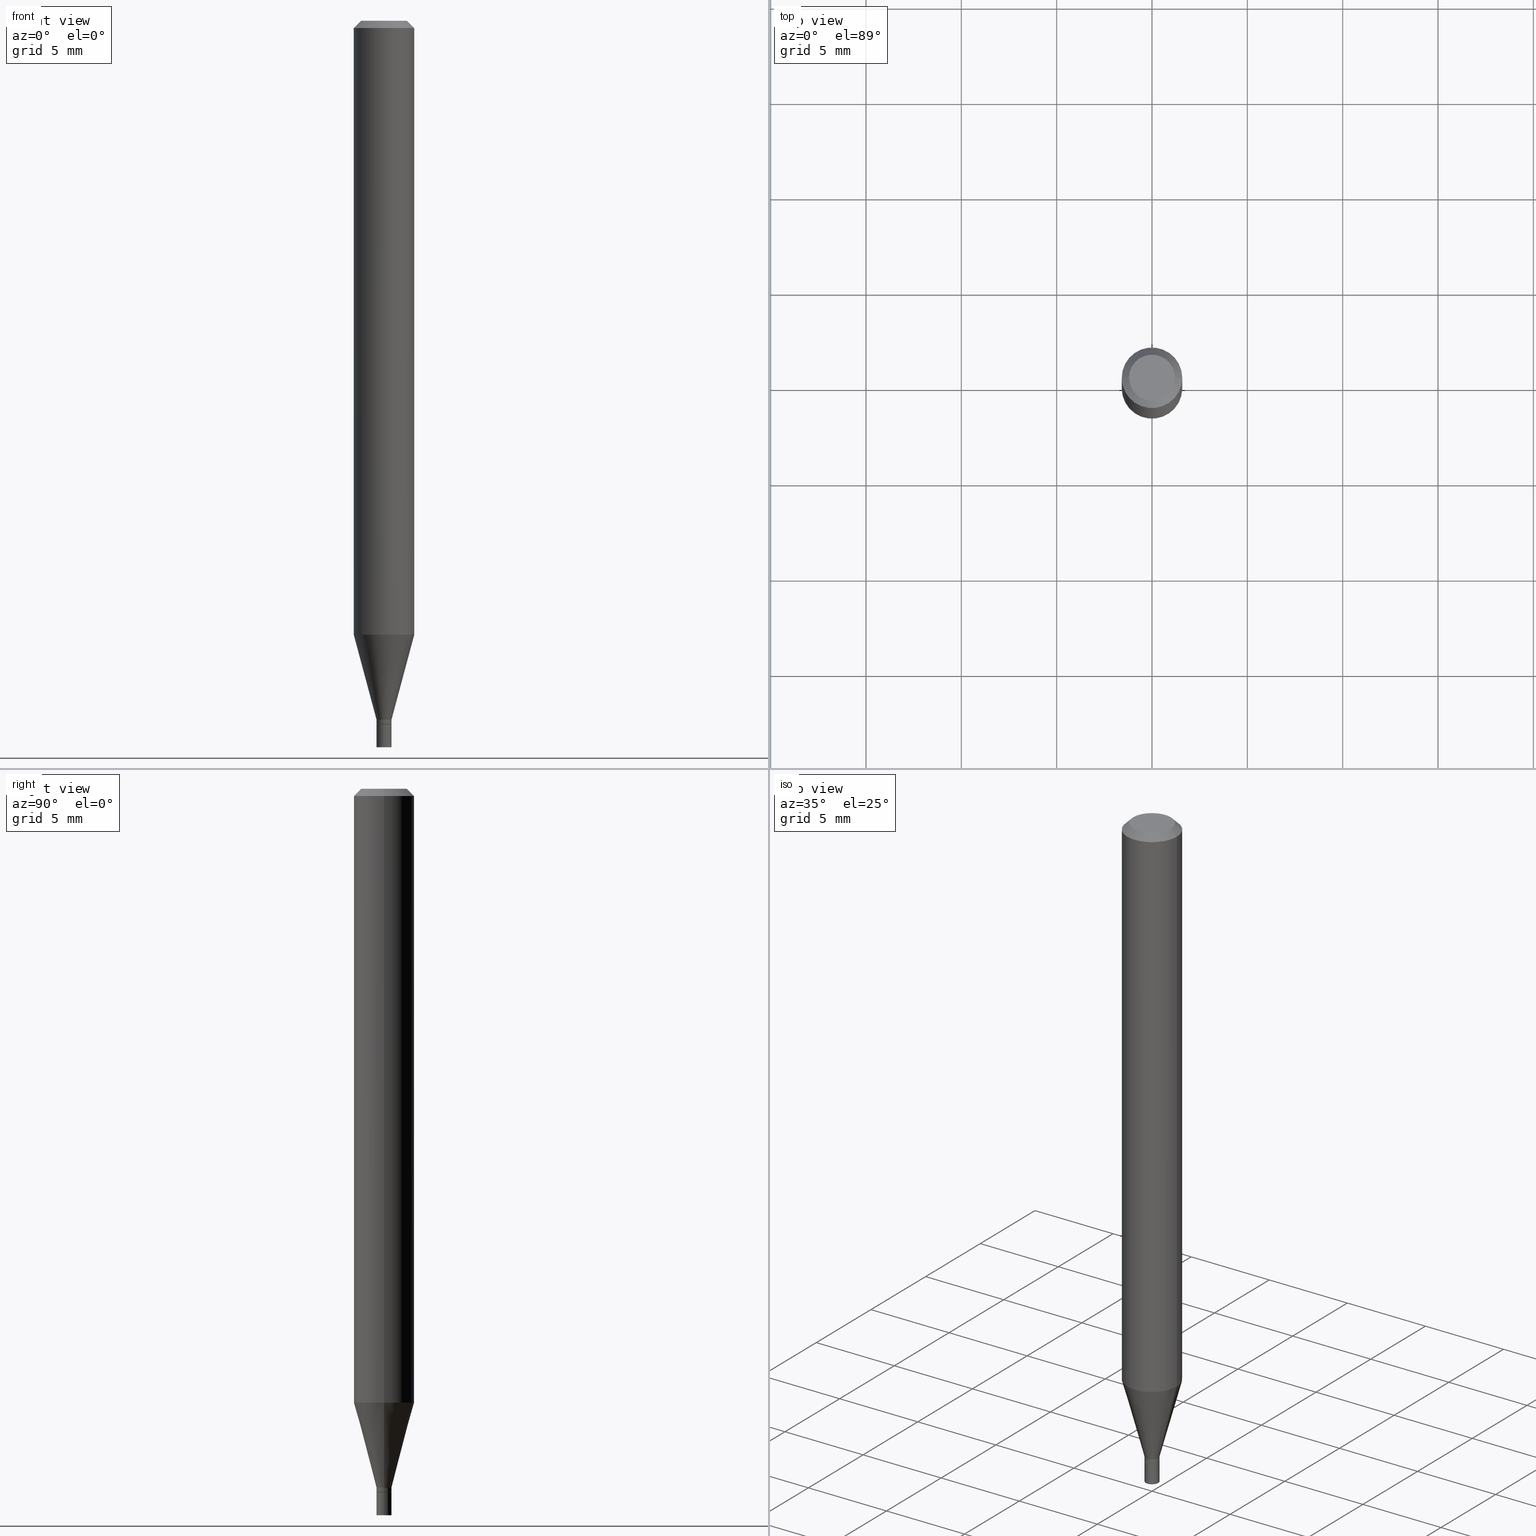
[diagram: canonical four-view strip — front | top / right | iso, engineering-drawing reading convention]
A machine part, canonical four-view strip (front | top / right | iso — engineering-drawing reading convention). The complete STEP part file that produces these views, byte-faithful:
ISO-10303-21;
HEADER;
FILE_DESCRIPTION (( 'STEP AP203' ),
    '1' );
FILE_NAME ('00327.STEP',
    '2024-03-19T20:59:02',
    ( '' ),
    ( '' ),
    'SwSTEP 2.0',
    'SolidWorks 2023',
    '' );
FILE_SCHEMA (( 'CONFIG_CONTROL_DESIGN' ));
ENDSEC;

DATA;
#1 = EDGE_CURVE ( 'NONE', #279, #460, #418, .T. ) ;
#2 = FACE_OUTER_BOUND ( 'NONE', #95, .T. ) ;
#3 = CARTESIAN_POINT ( 'NONE',  ( -0.01499999999999999944, -4.963891747800964207E-15, -1.453000000000000069 ) ) ;
#4 = ADVANCED_FACE ( 'NONE', ( #68 ), #396, .T. ) ;
#5 = AXIS2_PLACEMENT_3D ( 'NONE', #336, #157, #264 ) ;
#6 = DIRECTION ( 'NONE',  ( 1.000000000000000000, -6.982962677686273810E-15, 0.000000000000000000 ) ) ;
#7 = AXIS2_PLACEMENT_3D ( 'NONE', #217, #335, #16 ) ;
#8 = MANIFOLD_SOLID_BREP ( 'Body-Move/Copy2[2]', #388 ) ;
#9 = CARTESIAN_POINT ( 'NONE',  ( 3.553266175387003417E-29, -5.073122385339090530E-15, -1.453000000000000069 ) ) ;
#10 = EDGE_LOOP ( 'NONE', ( #343, #131, #385, #84 ) ) ;
#11 = DIRECTION ( 'NONE',  ( -2.445468806185136597E-29, 3.491481338843145583E-15, 1.000000000000000000 ) ) ;
#12 = DIRECTION ( 'NONE',  ( 1.000000000000000000, -6.982962677686273810E-15, 0.000000000000000000 ) ) ;
#13 = VERTEX_POINT ( 'NONE', #165 ) ;
#14 = CARTESIAN_POINT ( 'NONE',  ( 3.668203209277705088E-31, -5.237222008264718399E-17, -0.01499999999999999944 ) ) ;
#15 = CALENDAR_DATE ( 2024, 19, 3 ) ;
#16 = DIRECTION ( 'NONE',  ( 1.000000000000000000, -6.982962677686238312E-15, 0.000000000000000000 ) ) ;
#17 = ADVANCED_FACE ( 'NONE', ( #113 ), #44, .T. ) ;
#18 = DIRECTION ( 'NONE',  ( 1.000000000000000000, -6.982962677686266711E-15, 0.000000000000000000 ) ) ;
#19 = ORIENTED_EDGE ( 'NONE', *, *, #329, .T. ) ;
#20 = PLANE ( 'NONE',  #200 ) ;
#21 = ORIENTED_EDGE ( 'NONE', *, *, #96, .T. ) ;
#22 = CARTESIAN_POINT ( 'NONE',  ( -0.06250000000000000000, 3.840629472727444916E-16, -0.01499999999999999944 ) ) ;
#23 = FACE_OUTER_BOUND ( 'NONE', #224, .T. ) ;
#24 = EDGE_LOOP ( 'NONE', ( #94, #153, #19, #276 ) ) ;
#25 = CARTESIAN_POINT ( 'NONE',  ( -0.04749999999999999362, 3.578768372314202617E-16, -4.684051019975790718E-16 ) ) ;
#26 = EDGE_LOOP ( 'NONE', ( #393, #345, #454, #132 ) ) ;
#27 = AXIS2_PLACEMENT_3D ( 'NONE', #413, #284, #255 ) ;
#28 = ORIENTED_EDGE ( 'NONE', *, *, #60, .T. ) ;
#29 = VECTOR ( 'NONE', #189, 39.37007874015748854 ) ;
#30 = DIMENSIONAL_EXPONENTS ( 1.000000000000000000, 0.000000000000000000, 0.000000000000000000, 0.000000000000000000, 0.000000000000000000, 0.000000000000000000, 0.000000000000000000 ) ;
#31 = APPLICATION_PROTOCOL_DEFINITION ( 'international standard', 'config_control_design', 1994, #447 ) ;
#32 = APPROVAL_DATE_TIME ( #238, #430 ) ;
#33 = AXIS2_PLACEMENT_3D ( 'NONE', #150, #81, #121 ) ;
#34 = ADVANCED_FACE ( 'NONE', ( #56 ), #298, .T. ) ;
#35 = CIRCLE ( 'NONE', #97, 0.01549999999999999989 ) ;
#36 = APPROVAL_ROLE ( '' ) ;
#37 = CIRCLE ( 'NONE', #306, 0.01549999999999992183 ) ;
#38 = CC_DESIGN_APPROVAL ( #177, ( #289 ) ) ;
#39 = ORIENTED_EDGE ( 'NONE', *, *, #364, .T. ) ;
#40 = CC_DESIGN_PERSON_AND_ORGANIZATION_ASSIGNMENT ( #309, #61, ( #183 ) ) ;
#41 = ORIENTED_EDGE ( 'NONE', *, *, #179, .F. ) ;
#42 = CARTESIAN_POINT ( 'NONE',  ( -0.06250000000000000000, -3.981690231839260141E-15, -1.267593612044263018 ) ) ;
#43 = DIRECTION ( 'NONE',  ( 1.000000000000000000, -6.982962677686265922E-15, 4.876176775795935793E-29 ) ) ;
#44 = CONICAL_SURFACE ( 'NONE', #371, 0.01549999999999992183, 0.2617993877991499629 ) ;
#45 = DIRECTION ( 'NONE',  ( 0.7071067811865642261, -2.468850131082431399E-15, 0.7071067811865309194 ) ) ;
#46 = CONICAL_SURFACE ( 'NONE', #277, 0.06250000000000000000, 0.7853981633974639331 ) ;
#47 = FACE_OUTER_BOUND ( 'NONE', #444, .T. ) ;
#48 = FACE_OUTER_BOUND ( 'NONE', #220, .T. ) ;
#49 = DIRECTION ( 'NONE',  ( -2.438088387897960049E-29, 3.491481338843145188E-15, 1.000000000000000000 ) ) ;
#50 = EDGE_CURVE ( 'NONE', #328, #173, #240, .T. ) ;
#51 = CARTESIAN_POINT ( 'NONE',  ( -0.01549999999999992183, -4.454881839873552684E-15, -1.443000000000000060 ) ) ;
#52 = DIRECTION ( 'NONE',  ( -2.445468806185136597E-29, 3.491481338843145583E-15, 1.000000000000000000 ) ) ;
#53 = ORIENTED_EDGE ( 'NONE', *, *, #145, .F. ) ;
#54 = EDGE_LOOP ( 'NONE', ( #325, #91, #296, #72 ) ) ;
#55 = DIRECTION ( 'NONE',  ( -2.445468806185136877E-29, 3.491481338843145188E-15, 1.000000000000000000 ) ) ;
#56 = FACE_OUTER_BOUND ( 'NONE', #129, .T. ) ;
#57 = VECTOR ( 'NONE', #436, 39.37007874015748143 ) ;
#58 = ORIENTED_EDGE ( 'NONE', *, *, #162, .T. ) ;
#59 = CARTESIAN_POINT ( 'NONE',  ( 3.553266175387003417E-29, -5.073122385339090530E-15, -1.453000000000000069 ) ) ;
#60 = EDGE_CURVE ( 'NONE', #173, #328, #360, .T. ) ;
#61 = PERSON_AND_ORGANIZATION_ROLE ( 'design_owner' ) ;
#62 = ORIENTED_EDGE ( 'NONE', *, *, #226, .F. ) ;
#63 =( NAMED_UNIT ( * ) SI_UNIT ( $, .STERADIAN. ) SOLID_ANGLE_UNIT ( ) );
#64 = LOCAL_TIME ( 16, 59, 2.000000000000000000, #392 ) ;
#65 = EDGE_CURVE ( 'NONE', #305, #397, #37, .T. ) ;
#66 = DIRECTION ( 'NONE',  ( -2.445468806185136597E-29, 3.491481338843145583E-15, 1.000000000000000000 ) ) ;
#67 = PRODUCT_DEFINITION_FORMATION_WITH_SPECIFIED_SOURCE ( 'ANY', '', #183, .NOT_KNOWN. ) ;
#68 = FACE_OUTER_BOUND ( 'NONE', #54, .T. ) ;
#69 = ADVANCED_BREP_SHAPE_REPRESENTATION ( '00327', ( #321, #8, #169 ), #146 ) ;
#70 = DIRECTION ( 'NONE',  ( -2.445468806185136877E-29, 3.491481338843145188E-15, 1.000000000000000000 ) ) ;
#71 = CONICAL_SURFACE ( 'NONE', #340, 0.01499999999999999944, 0.7853981633974718157 ) ;
#72 = ORIENTED_EDGE ( 'NONE', *, *, #455, .T. ) ;
#73 = PRODUCT_DEFINITION_SHAPE ( 'NONE', 'NONE',  #289 ) ;
#74 = CARTESIAN_POINT ( 'NONE',  ( 3.528811487325152432E-29, -5.038207571950659670E-15, -1.443000000000000060 ) ) ;
#75 = EDGE_CURVE ( 'NONE', #428, #203, #218, .T. ) ;
#76 = DIRECTION ( 'NONE',  ( 1.000000000000000000, -6.982962677686273810E-15, 0.000000000000000000 ) ) ;
#77 = ORIENTED_EDGE ( 'NONE', *, *, #364, .F. ) ;
#78 = AXIS2_PLACEMENT_3D ( 'NONE', #92, #453, #223 ) ;
#79 = LOCAL_TIME ( 16, 59, 2.000000000000000000, #86 ) ;
#80 = FACE_OUTER_BOUND ( 'NONE', #402, .T. ) ;
#81 = DIRECTION ( 'NONE',  ( -2.445468806185136597E-29, 3.491481338843145583E-15, 1.000000000000000000 ) ) ;
#82 = DIRECTION ( 'NONE',  ( 1.000000000000000000, -6.982962677686268288E-15, 0.000000000000000000 ) ) ;
#83 = CARTESIAN_POINT ( 'NONE',  ( 0.01499999999999999944, -5.177866825504383900E-15, -1.453000000000000069 ) ) ;
#84 = ORIENTED_EDGE ( 'NONE', *, *, #329, .F. ) ;
#85 = DIRECTION ( 'NONE',  ( -2.445468806185136877E-29, 3.491481338843145188E-15, 1.000000000000000000 ) ) ;
#86 = COORDINATED_UNIVERSAL_TIME_OFFSET ( 5, 0, .BEHIND. ) ;
#87 = DIRECTION ( 'NONE',  ( -2.445468806185136597E-29, 3.491481338843145583E-15, 1.000000000000000000 ) ) ;
#88 = LINE ( 'NONE', #22, #434 ) ;
#89 = CC_DESIGN_PERSON_AND_ORGANIZATION_ASSIGNMENT ( #110, #448, ( #289 ) ) ;
#90 = AXIS2_PLACEMENT_3D ( 'NONE', #212, #231, #408 ) ;
#91 = ORIENTED_EDGE ( 'NONE', *, *, #60, .F. ) ;
#92 = CARTESIAN_POINT ( 'NONE',  ( 1.145470065593040868E-44, -1.635427672643458845E-30, -4.684051019975766066E-16 ) ) ;
#93 = DIRECTION ( 'NONE',  ( -2.445468806185136597E-29, 3.491481338843145583E-15, 1.000000000000000000 ) ) ;
#94 = ORIENTED_EDGE ( 'NONE', *, *, #265, .F. ) ;
#95 = EDGE_LOOP ( 'NONE', ( #452, #377, #282, #41 ) ) ;
#96 = EDGE_CURVE ( 'NONE', #460, #222, #342, .T. ) ;
#97 = AXIS2_PLACEMENT_3D ( 'NONE', #295, #191, #449 ) ;
#98 = CALENDAR_DATE ( 2024, 19, 3 ) ;
#99 = DIRECTION ( 'NONE',  ( -2.445468806185136597E-29, 3.491481338843145583E-15, 1.000000000000000000 ) ) ;
#100 = ORIENTED_EDGE ( 'NONE', *, *, #274, .T. ) ;
#101 = PRODUCT_RELATED_PRODUCT_CATEGORY ( 'detail', '', ( #183 ) ) ;
#102 = LINE ( 'NONE', #244, #175 ) ;
#103 = VECTOR ( 'NONE', #114, 39.37007874015748143 ) ;
#104 = EDGE_CURVE ( 'NONE', #353, #314, #158, .T. ) ;
#105 = FACE_OUTER_BOUND ( 'NONE', #451, .T. ) ;
#106 = ADVANCED_FACE ( 'NONE', ( #48 ), #163, .F. ) ;
#107 = ORIENTED_EDGE ( 'NONE', *, *, #145, .T. ) ;
#108 = CARTESIAN_POINT ( 'NONE',  ( 3.528811487325152432E-29, -5.038207571950659670E-15, -1.443000000000000060 ) ) ;
#109 = CARTESIAN_POINT ( 'NONE',  ( 3.316907271900976096E-16, 0.04749999999999999362, -4.000479145938377490E-16 ) ) ;
#110 = PERSON_AND_ORGANIZATION ( #320, #257 ) ;
#111 = DIRECTION ( 'NONE',  ( 1.000000000000000000, -6.982962677686273810E-15, 0.000000000000000000 ) ) ;
#112 = PERSON_AND_ORGANIZATION ( #320, #257 ) ;
#113 = FACE_OUTER_BOUND ( 'NONE', #26, .T. ) ;
#114 = DIRECTION ( 'NONE',  ( -2.445468806185136877E-29, 3.491481338843145188E-15, 1.000000000000000000 ) ) ;
#115 = ORIENTED_EDGE ( 'NONE', *, *, #1, .T. ) ;
#116 = AXIS2_PLACEMENT_3D ( 'NONE', #262, #232, #250 ) ;
#117 = CYLINDRICAL_SURFACE ( 'NONE', #211, 0.01549999999999992183 ) ;
#118 = AXIS2_PLACEMENT_3D ( 'NONE', #156, #52, #193 ) ;
#119 = APPROVAL_DATE_TIME ( #155, #177 ) ;
#120 = DIRECTION ( 'NONE',  ( -2.445468806185136597E-29, 3.491481338843145583E-15, 1.000000000000000000 ) ) ;
#121 = DIRECTION ( 'NONE',  ( 1.000000000000000000, -6.982962677686238312E-15, 0.000000000000000000 ) ) ;
#122 = ADVANCED_FACE ( 'NONE', ( #23 ), #326, .F. ) ;
#123 = ORIENTED_EDGE ( 'NONE', *, *, #415, .T. ) ;
#124 = DIRECTION ( 'NONE',  ( -2.445468806185136597E-29, 3.491481338843145583E-15, 1.000000000000000000 ) ) ;
#125 = ORIENTED_EDGE ( 'NONE', *, *, #75, .T. ) ;
#126 = DIRECTION ( 'NONE',  ( 1.000000000000000000, -6.982962677686268288E-15, 0.000000000000000000 ) ) ;
#127 = AXIS2_PLACEMENT_3D ( 'NONE', #59, #442, #154 ) ;
#128 = APPROVAL_PERSON_ORGANIZATION ( #112, #430, #352 ) ;
#129 = EDGE_LOOP ( 'NONE', ( #258, #107, #269, #77 ) ) ;
#130 = CC_DESIGN_PERSON_AND_ORGANIZATION_ASSIGNMENT ( #135, #134, ( #67 ) ) ;
#131 = ORIENTED_EDGE ( 'NONE', *, *, #265, .T. ) ;
#132 = ORIENTED_EDGE ( 'NONE', *, *, #1, .F. ) ;
#133 = EDGE_LOOP ( 'NONE', ( #28, #291 ) ) ;
#134 = PERSON_AND_ORGANIZATION_ROLE ( 'creator' ) ;
#135 = PERSON_AND_ORGANIZATION ( #320, #257 ) ;
#136 = CARTESIAN_POINT ( 'NONE',  ( 3.099860637173788860E-29, -4.425779441689322757E-15, -1.267593612044263018 ) ) ;
#137 = CARTESIAN_POINT ( 'NONE',  ( 0.000000000000000000, 0.000000000000000000, 0.000000000000000000 ) ) ;
#138 = EDGE_CURVE ( 'NONE', #460, #279, #463, .T. ) ;
#139 = SECURITY_CLASSIFICATION_LEVEL ( 'unclassified' ) ;
#140 = CARTESIAN_POINT ( 'NONE',  ( 0.000000000000000000, 0.000000000000000000, 0.000000000000000000 ) ) ;
#141 = AXIS2_PLACEMENT_3D ( 'NONE', #9, #286, #126 ) ;
#142 = CARTESIAN_POINT ( 'NONE',  ( 3.668203209277705088E-31, -5.237222008264718399E-17, -0.01499999999999999944 ) ) ;
#143 = CYLINDRICAL_SURFACE ( 'NONE', #426, 0.01549999999999992183 ) ;
#144 = ORIENTED_EDGE ( 'NONE', *, *, #466, .F. ) ;
#145 = EDGE_CURVE ( 'NONE', #203, #428, #280, .T. ) ;
#146 =( GEOMETRIC_REPRESENTATION_CONTEXT ( 3 ) GLOBAL_UNCERTAINTY_ASSIGNED_CONTEXT ( ( #461 ) ) GLOBAL_UNIT_ASSIGNED_CONTEXT ( ( #168, #310, #63 ) ) REPRESENTATION_CONTEXT ( 'NONE', 'WORKASPACE' ) );
#147 = ADVANCED_FACE ( 'NONE', ( #187 ), #311, .T. ) ;
#148 = CARTESIAN_POINT ( 'NONE',  ( 0.04749999999999999362, -4.035134999187586019E-16, -4.684051019975741414E-16 ) ) ;
#149 = APPLICATION_CONTEXT ( 'configuration controlled 3d designs of mechanical parts and assemblies' ) ;
#150 = CARTESIAN_POINT ( 'NONE',  ( 3.668203209277704895E-29, -5.237222008264718177E-15, -1.500000000000000222 ) ) ;
#151 = DIRECTION ( 'NONE',  ( -1.000000000000000000, 6.982962677686266711E-15, 0.000000000000000000 ) ) ;
#152 = CYLINDRICAL_SURFACE ( 'NONE', #458, 0.01549999999999999989 ) ;
#153 = ORIENTED_EDGE ( 'NONE', *, *, #104, .T. ) ;
#154 = DIRECTION ( 'NONE',  ( 1.000000000000000000, -6.982962677686268288E-15, 0.000000000000000000 ) ) ;
#155 = DATE_AND_TIME ( #15, #206 ) ;
#156 = CARTESIAN_POINT ( 'NONE',  ( 0.000000000000000000, 0.000000000000000000, 0.000000000000000000 ) ) ;
#157 = DIRECTION ( 'NONE',  ( -2.445468806185136597E-29, 3.491481338843145583E-15, 1.000000000000000000 ) ) ;
#158 = CIRCLE ( 'NONE', #127, 0.01499999999999999944 ) ;
#159 = LINE ( 'NONE', #263, #241 ) ;
#160 = CIRCLE ( 'NONE', #188, 0.01549999999999992183 ) ;
#161 = CALENDAR_DATE ( 2024, 19, 3 ) ;
#162 = EDGE_CURVE ( 'NONE', #279, #381, #439, .T. ) ;
#163 = PLANE ( 'NONE',  #27 ) ;
#164 = ORIENTED_EDGE ( 'NONE', *, *, #50, .F. ) ;
#165 = CARTESIAN_POINT ( 'NONE',  ( 0.01549999999999992183, -5.146443493454796047E-15, -1.443000000000000060 ) ) ;
#166 = CARTESIAN_POINT ( 'NONE',  ( 3.576687321579069994E-29, -5.368277968210015545E-15, -1.500000000000000222 ) ) ;
#167 = ADVANCED_FACE ( 'NONE', ( #410 ), #20, .F. ) ;
#168 =( CONVERSION_BASED_UNIT ( 'INCH', #216 ) LENGTH_UNIT ( ) NAMED_UNIT ( #30 ) );
#169 = AXIS2_PLACEMENT_3D ( 'NONE', #273, #424, #344 ) ;
#170 = DIRECTION ( 'NONE',  ( 1.000000000000000000, -6.982962677686268288E-15, 0.000000000000000000 ) ) ;
#171 = MECHANICAL_CONTEXT ( 'NONE', #447, 'mechanical' ) ;
#172 = APPROVAL_STATUS ( 'not_yet_approved' ) ;
#173 = VERTEX_POINT ( 'NONE', #25 ) ;
#174 = COORDINATED_UNIVERSAL_TIME_OFFSET ( 5, 0, .BEHIND. ) ;
#175 = VECTOR ( 'NONE', #70, 39.37007874015748143 ) ;
#176 = PERSON_AND_ORGANIZATION_ROLE ( 'classification_officer' ) ;
#177 = APPROVAL ( #294, 'UNSPECIFIED' ) ;
#178 = COORDINATED_UNIVERSAL_TIME_OFFSET ( 5, 0, .BEHIND. ) ;
#179 = EDGE_CURVE ( 'NONE', #363, #13, #245, .T. ) ;
#180 = PERSON_AND_ORGANIZATION_ROLE ( 'design_supplier' ) ;
#181 = ADVANCED_FACE ( 'NONE', ( #445 ), #117, .T. ) ;
#182 = APPROVAL_PERSON_ORGANIZATION ( #356, #215, #36 ) ;
#183 = PRODUCT ( '00327', '00327', '', ( #171 ) ) ;
#184 = ADVANCED_FACE ( 'NONE', ( #303 ), #71, .T. ) ;
#185 = ORIENTED_EDGE ( 'NONE', *, *, #242, .F. ) ;
#186 = CARTESIAN_POINT ( 'NONE',  ( 0.01549999999999992183, -5.179612566173805404E-15, -1.452500000000000124 ) ) ;
#187 = FACE_OUTER_BOUND ( 'NONE', #24, .T. ) ;
#188 = AXIS2_PLACEMENT_3D ( 'NONE', #293, #283, #6 ) ;
#189 = DIRECTION ( 'NONE',  ( 0.2588190451025212391, 1.565188264969622362E-15, 0.9659258262890679791 ) ) ;
#190 = COORDINATED_UNIVERSAL_TIME_OFFSET ( 5, 0, .BEHIND. ) ;
#191 = DIRECTION ( 'NONE',  ( -2.445468806185136597E-29, 3.491481338843145583E-15, 1.000000000000000000 ) ) ;
#192 = CARTESIAN_POINT ( 'NONE',  ( 3.553266175387003417E-29, -5.073122385339090530E-15, -1.453000000000000069 ) ) ;
#193 = DIRECTION ( 'NONE',  ( 1.000000000000000000, -6.982962677686266711E-15, 4.876176775795935793E-29 ) ) ;
#194 = ORIENTED_EDGE ( 'NONE', *, *, #65, .T. ) ;
#195 = DIRECTION ( 'NONE',  ( -2.445468806185136597E-29, 3.491481338843145583E-15, 1.000000000000000000 ) ) ;
#196 = DIRECTION ( 'NONE',  ( 1.000000000000000000, -6.982962677686265922E-15, 4.876176775795935793E-29 ) ) ;
#197 = EDGE_CURVE ( 'NONE', #397, #363, #235, .T. ) ;
#198 = VERTEX_POINT ( 'NONE', #417 ) ;
#199 = DIRECTION ( 'NONE',  ( 1.000000000000000000, -6.982962677686267499E-15, 4.852736867747366768E-29 ) ) ;
#200 = AXIS2_PLACEMENT_3D ( 'NONE', #166, #49, #196 ) ;
#201 = CARTESIAN_POINT ( 'NONE',  ( 0.06250000000000000000, -4.888073874380388472E-16, -0.01499999999999999944 ) ) ;
#202 = EDGE_CURVE ( 'NONE', #305, #13, #159, .T. ) ;
#203 = VERTEX_POINT ( 'NONE', #230 ) ;
#204 = CIRCLE ( 'NONE', #7, 0.01549999999999999989 ) ;
#205 = AXIS2_PLACEMENT_3D ( 'NONE', #136, #316, #243 ) ;
#206 = LOCAL_TIME ( 16, 59, 2.000000000000000000, #190 ) ;
#207 = ORIENTED_EDGE ( 'NONE', *, *, #437, .T. ) ;
#208 = CC_DESIGN_PERSON_AND_ORGANIZATION_ASSIGNMENT ( #318, #180, ( #67 ) ) ;
#209 = CALENDAR_DATE ( 2024, 19, 3 ) ;
#210 = CARTESIAN_POINT ( 'NONE',  ( -0.01549999999999992183, -4.928073447907845227E-15, -1.443000000000000060 ) ) ;
#211 = AXIS2_PLACEMENT_3D ( 'NONE', #337, #259, #414 ) ;
#212 = CARTESIAN_POINT ( 'NONE',  ( 3.668203209277705088E-31, -5.237222008264718399E-17, -0.01499999999999999944 ) ) ;
#213 = LOCAL_TIME ( 16, 59, 2.000000000000000000, #178 ) ;
#214 = ORIENTED_EDGE ( 'NONE', *, *, #254, .F. ) ;
#215 = APPROVAL ( #462, 'UNSPECIFIED' ) ;
#216 = LENGTH_MEASURE_WITH_UNIT ( LENGTH_MEASURE( 0.02539999999999999897 ), #382 );
#217 = CARTESIAN_POINT ( 'NONE',  ( 3.553266175387003417E-29, -5.073122385339090530E-15, -1.453000000000000069 ) ) ;
#218 = CIRCLE ( 'NONE', #33, 0.01549999999999999989 ) ;
#219 = VECTOR ( 'NONE', #45, 39.37007874015748143 ) ;
#220 = EDGE_LOOP ( 'NONE', ( #123, #39 ) ) ;
#221 = CYLINDRICAL_SURFACE ( 'NONE', #118, 0.06250000000000000000 ) ;
#222 = VERTEX_POINT ( 'NONE', #201 ) ;
#223 = DIRECTION ( 'NONE',  ( 1.000000000000000000, -6.982962677686267499E-15, 4.852736867747366768E-29 ) ) ;
#224 = EDGE_LOOP ( 'NONE', ( #185, #389 ) ) ;
#225 = CARTESIAN_POINT ( 'NONE',  ( -0.01549999999999992183, 1.101341240428149734E-16, -7.624349389895065398E-31 ) ) ;
#226 = EDGE_CURVE ( 'NONE', #173, #381, #88, .T. ) ;
#227 = LINE ( 'NONE', #333, #29 ) ;
#228 = CARTESIAN_POINT ( 'NONE',  ( 3.668203209277705088E-31, -5.237222008264718399E-17, -0.01499999999999999944 ) ) ;
#229 = DIRECTION ( 'NONE',  ( 1.000000000000000000, -6.982962677686262766E-15, 0.000000000000000000 ) ) ;
#230 = CARTESIAN_POINT ( 'NONE',  ( -0.01549999999999999989, -5.045038072759088332E-15, -1.500000000000000222 ) ) ;
#231 = DIRECTION ( 'NONE',  ( -2.445468806185136597E-29, 3.491481338843145583E-15, 1.000000000000000000 ) ) ;
#232 = DIRECTION ( 'NONE',  ( -2.445468806185136597E-29, 3.491481338843145583E-15, 1.000000000000000000 ) ) ;
#233 = AXIS2_PLACEMENT_3D ( 'NONE', #108, #251, #380 ) ;
#234 = AXIS2_PLACEMENT_3D ( 'NONE', #137, #66, #351 ) ;
#235 = LINE ( 'NONE', #225, #406 ) ;
#236 = EDGE_LOOP ( 'NONE', ( #164, #100, #300, #62 ) ) ;
#237 = AXIS2_PLACEMENT_3D ( 'NONE', #376, #120, #403 ) ;
#238 = DATE_AND_TIME ( #464, #64 ) ;
#239 = ORIENTED_EDGE ( 'NONE', *, *, #394, .T. ) ;
#240 = CIRCLE ( 'NONE', #78, 0.04749999999999999362 ) ;
#241 = VECTOR ( 'NONE', #85, 39.37007874015748143 ) ;
#242 = EDGE_CURVE ( 'NONE', #314, #353, #407, .T. ) ;
#243 = DIRECTION ( 'NONE',  ( 1.000000000000000000, -6.982962677686262766E-15, 0.000000000000000000 ) ) ;
#244 = CARTESIAN_POINT ( 'NONE',  ( -0.01549999999999999989, 1.101341240428155280E-16, -7.624349389895103058E-31 ) ) ;
#245 = CIRCLE ( 'NONE', #233, 0.01549999999999992183 ) ;
#246 = CIRCLE ( 'NONE', #90, 0.06250000000000000000 ) ;
#247 = ADVANCED_FACE ( 'NONE', ( #272 ), #308, .T. ) ;
#248 = CARTESIAN_POINT ( 'NONE',  ( 0.01499999999999999944, -5.177866825504383900E-15, -1.453000000000000069 ) ) ;
#249 = CARTESIAN_POINT ( 'NONE',  ( -0.06250000000000000000, -1.794986621035922499E-15, -0.01499999999999999944 ) ) ;
#250 = DIRECTION ( 'NONE',  ( 1.000000000000000000, -6.982962677686266711E-15, 4.876176775795935232E-29 ) ) ;
#251 = DIRECTION ( 'NONE',  ( -2.445468806185136597E-29, 3.491481338843145583E-15, 1.000000000000000000 ) ) ;
#252 = DIRECTION ( 'NONE',  ( 2.438088387897960049E-29, -3.491481338843145188E-15, -1.000000000000000000 ) ) ;
#253 = CARTESIAN_POINT ( 'NONE',  ( -0.01549999999999992183, -4.961242520626854583E-15, -1.452500000000000124 ) ) ;
#254 = EDGE_CURVE ( 'NONE', #428, #270, #405, .T. ) ;
#255 = DIRECTION ( 'NONE',  ( -1.000000000000000000, 6.982962677686265922E-15, -4.876176775795935793E-29 ) ) ;
#256 = LINE ( 'NONE', #327, #57 ) ;
#257 = ORGANIZATION ( 'UNSPECIFIED', 'UNSPECIFIED', '' ) ;
#258 = ORIENTED_EDGE ( 'NONE', *, *, #437, .F. ) ;
#259 = DIRECTION ( 'NONE',  ( -2.445468806185136597E-29, 3.491481338843145583E-15, 1.000000000000000000 ) ) ;
#260 = CARTESIAN_POINT ( 'NONE',  ( 0.01549999999999999989, -5.181358306843226907E-15, -1.453000000000000069 ) ) ;
#261 = DATE_AND_TIME ( #161, #79 ) ;
#262 = CARTESIAN_POINT ( 'NONE',  ( 0.000000000000000000, 0.000000000000000000, 0.000000000000000000 ) ) ;
#263 = CARTESIAN_POINT ( 'NONE',  ( 0.01549999999999992183, -1.082359215041365986E-16, 7.558074002483662259E-31 ) ) ;
#264 = DIRECTION ( 'NONE',  ( 1.000000000000000000, -6.982962677686238312E-15, 0.000000000000000000 ) ) ;
#265 = EDGE_CURVE ( 'NONE', #353, #397, #256, .T. ) ;
#266 = ORIENTED_EDGE ( 'NONE', *, *, #197, .T. ) ;
#267 = CLOSED_SHELL ( 'NONE', ( #386, #167, #34, #106 ) ) ;
#268 = ORIENTED_EDGE ( 'NONE', *, *, #162, .F. ) ;
#269 = ORIENTED_EDGE ( 'NONE', *, *, #254, .T. ) ;
#270 = VERTEX_POINT ( 'NONE', #260 ) ;
#271 = CC_DESIGN_DATE_AND_TIME_ASSIGNMENT ( #261, #412, ( #289 ) ) ;
#272 = FACE_OUTER_BOUND ( 'NONE', #350, .T. ) ;
#273 = CARTESIAN_POINT ( 'NONE',  ( 0.000000000000000000, 0.000000000000000000, 0.000000000000000000 ) ) ;
#274 = EDGE_CURVE ( 'NONE', #328, #222, #366, .T. ) ;
#275 = SHAPE_DEFINITION_REPRESENTATION ( #73, #69 ) ;
#276 = ORIENTED_EDGE ( 'NONE', *, *, #304, .F. ) ;
#277 = AXIS2_PLACEMENT_3D ( 'NONE', #14, #378, #151 ) ;
#278 = DATE_AND_TIME ( #98, #450 ) ;
#279 = VERTEX_POINT ( 'NONE', #42 ) ;
#280 = CIRCLE ( 'NONE', #5, 0.01549999999999999989 ) ;
#281 = AXIS2_PLACEMENT_3D ( 'NONE', #383, #409, #199 ) ;
#282 = ORIENTED_EDGE ( 'NONE', *, *, #202, .T. ) ;
#283 = DIRECTION ( 'NONE',  ( -2.445468806185136597E-29, 3.491481338843145583E-15, 1.000000000000000000 ) ) ;
#284 = DIRECTION ( 'NONE',  ( 2.438088387897960049E-29, -3.491481338843145188E-15, -1.000000000000000000 ) ) ;
#285 = ORIENTED_EDGE ( 'NONE', *, *, #202, .F. ) ;
#286 = DIRECTION ( 'NONE',  ( -2.445468806185136597E-29, 3.491481338843145583E-15, 1.000000000000000000 ) ) ;
#287 = FACE_OUTER_BOUND ( 'NONE', #133, .T. ) ;
#288 = DIRECTION ( 'NONE',  ( 1.000000000000000000, -6.982962677686266711E-15, 4.876176775795935232E-29 ) ) ;
#289 = PRODUCT_DEFINITION ( 'UNKNOWN', '', #67, #322 ) ;
#290 = DIRECTION ( 'NONE',  ( 2.445468806185136597E-29, -3.491481338843145583E-15, -1.000000000000000000 ) ) ;
#291 = ORIENTED_EDGE ( 'NONE', *, *, #50, .T. ) ;
#292 = CARTESIAN_POINT ( 'NONE',  ( -0.06250000000000000000, 4.440892098500626162E-16, -3.074334431409316114E-30 ) ) ;
#293 = CARTESIAN_POINT ( 'NONE',  ( 3.552043440983911736E-29, -5.071376644669669816E-15, -1.452500000000000124 ) ) ;
#294 = APPROVAL_STATUS ( 'not_yet_approved' ) ;
#295 = CARTESIAN_POINT ( 'NONE',  ( 3.553266175387003417E-29, -5.073122385339090530E-15, -1.453000000000000069 ) ) ;
#296 = ORIENTED_EDGE ( 'NONE', *, *, #226, .T. ) ;
#297 = VECTOR ( 'NONE', #404, 39.37007874015748143 ) ;
#298 = CYLINDRICAL_SURFACE ( 'NONE', #116, 0.01549999999999999989 ) ;
#299 = CC_DESIGN_APPROVAL ( #215, ( #391 ) ) ;
#300 = ORIENTED_EDGE ( 'NONE', *, *, #466, .T. ) ;
#301 = DIRECTION ( 'NONE',  ( -2.445468806185136597E-29, 3.491481338843145583E-15, 1.000000000000000000 ) ) ;
#302 = CARTESIAN_POINT ( 'NONE',  ( 3.552043440983911736E-29, -5.071376644669669816E-15, -1.452500000000000124 ) ) ;
#303 = FACE_OUTER_BOUND ( 'NONE', #10, .T. ) ;
#304 = EDGE_CURVE ( 'NONE', #397, #305, #160, .T. ) ;
#305 = VERTEX_POINT ( 'NONE', #186 ) ;
#306 = AXIS2_PLACEMENT_3D ( 'NONE', #302, #124, #12 ) ;
#307 = AXIS2_PLACEMENT_3D ( 'NONE', #74, #441, #111 ) ;
#308 = CYLINDRICAL_SURFACE ( 'NONE', #234, 0.06250000000000000000 ) ;
#309 = PERSON_AND_ORGANIZATION ( #320, #257 ) ;
#310 =( NAMED_UNIT ( * ) PLANE_ANGLE_UNIT ( ) SI_UNIT ( $, .RADIAN. ) );
#311 = CONICAL_SURFACE ( 'NONE', #141, 0.01499999999999999944, 0.7853981633974718157 ) ;
#312 = AXIS2_PLACEMENT_3D ( 'NONE', #354, #99, #170 ) ;
#313 = DATE_TIME_ROLE ( 'classification_date' ) ;
#314 = VERTEX_POINT ( 'NONE', #83 ) ;
#315 = APPROVAL_DATE_TIME ( #278, #215 ) ;
#316 = DIRECTION ( 'NONE',  ( -2.445468806185136597E-29, 3.491481338843145583E-15, 1.000000000000000000 ) ) ;
#317 = CARTESIAN_POINT ( 'NONE',  ( 0.01549999999999999989, -5.345457929768855342E-15, -1.500000000000000222 ) ) ;
#318 = PERSON_AND_ORGANIZATION ( #320, #257 ) ;
#319 = CC_DESIGN_APPROVAL ( #430, ( #67 ) ) ;
#320 = PERSON ( 'UNSPECIFIED', 'UNSPECIFIED', 'UNSPECIFIED', ('UNSPECIFIED'), ('UNSPECIFIED'), ('UNSPECIFIED') ) ;
#321 = MANIFOLD_SOLID_BREP ( 'Body-Move/Copy2[1]', #267 ) ;
#322 = DESIGN_CONTEXT ( 'detailed design', #149, 'design' ) ;
#323 = ORIENTED_EDGE ( 'NONE', *, *, #138, .T. ) ;
#324 = CONICAL_SURFACE ( 'NONE', #237, 0.01549999999999992183, 0.2617993877991499629 ) ;
#325 = ORIENTED_EDGE ( 'NONE', *, *, #274, .F. ) ;
#326 = PLANE ( 'NONE',  #433 ) ;
#327 = CARTESIAN_POINT ( 'NONE',  ( -0.01499999999999999944, -4.966540974975075408E-15, -1.453000000000000069 ) ) ;
#328 = VERTEX_POINT ( 'NONE', #148 ) ;
#329 = EDGE_CURVE ( 'NONE', #314, #305, #369, .T. ) ;
#330 = FACE_OUTER_BOUND ( 'NONE', #236, .T. ) ;
#331 = CARTESIAN_POINT ( 'NONE',  ( 0.000000000000000000, 0.000000000000000000, 0.000000000000000000 ) ) ;
#332 = CARTESIAN_POINT ( 'NONE',  ( 3.099860637173788860E-29, -4.425779441689322757E-15, -1.267593612044263018 ) ) ;
#333 = CARTESIAN_POINT ( 'NONE',  ( 0.01549999999999992183, -5.146443493454796047E-15, -1.443000000000000060 ) ) ;
#334 = APPROVAL_ROLE ( '' ) ;
#335 = DIRECTION ( 'NONE',  ( -2.445468806185136597E-29, 3.491481338843145583E-15, 1.000000000000000000 ) ) ;
#336 = CARTESIAN_POINT ( 'NONE',  ( 3.668203209277704895E-29, -5.237222008264718177E-15, -1.500000000000000222 ) ) ;
#337 = CARTESIAN_POINT ( 'NONE',  ( 0.000000000000000000, 0.000000000000000000, 0.000000000000000000 ) ) ;
#338 = EDGE_CURVE ( 'NONE', #13, #460, #227, .T. ) ;
#339 = CARTESIAN_POINT ( 'NONE',  ( 0.06250000000000000000, -4.862214609044713638E-15, -1.267593612044263018 ) ) ;
#340 = AXIS2_PLACEMENT_3D ( 'NONE', #420, #93, #82 ) ;
#341 = ADVANCED_FACE ( 'NONE', ( #330 ), #46, .T. ) ;
#342 = LINE ( 'NONE', #373, #297 ) ;
#343 = ORIENTED_EDGE ( 'NONE', *, *, #242, .T. ) ;
#344 = DIRECTION ( 'NONE',  ( 1.000000000000000000, 0.000000000000000000, 0.000000000000000000 ) ) ;
#345 = ORIENTED_EDGE ( 'NONE', *, *, #179, .T. ) ;
#346 = VECTOR ( 'NONE', #374, 39.37007874015748143 ) ;
#347 = AXIS2_PLACEMENT_3D ( 'NONE', #109, #252, #375 ) ;
#348 = DIRECTION ( 'NONE',  ( -0.7071067811865585639, 2.468850131082372629E-15, -0.7071067811865364705 ) ) ;
#349 = CC_DESIGN_DATE_AND_TIME_ASSIGNMENT ( #358, #313, ( #391 ) ) ;
#350 = EDGE_LOOP ( 'NONE', ( #323, #58, #144, #422 ) ) ;
#351 = DIRECTION ( 'NONE',  ( 1.000000000000000000, -6.982962677686266711E-15, 4.876176775795935793E-29 ) ) ;
#352 = APPROVAL_ROLE ( '' ) ;
#353 = VERTEX_POINT ( 'NONE', #3 ) ;
#354 = CARTESIAN_POINT ( 'NONE',  ( 3.553266175387003417E-29, -5.073122385339090530E-15, -1.453000000000000069 ) ) ;
#355 = CIRCLE ( 'NONE', #400, 0.06250000000000000000 ) ;
#356 = PERSON_AND_ORGANIZATION ( #320, #257 ) ;
#357 = DIRECTION ( 'NONE',  ( 1.000000000000000000, -6.982962677686267499E-15, 4.876176775795935793E-29 ) ) ;
#358 = DATE_AND_TIME ( #209, #213 ) ;
#359 = DIRECTION ( 'NONE',  ( -0.2588190451025212391, 5.211531920934549464E-15, 0.9659258262890679791 ) ) ;
#360 = CIRCLE ( 'NONE', #281, 0.04749999999999999362 ) ;
#361 = ADVANCED_FACE ( 'NONE', ( #287 ), #440, .F. ) ;
#362 = CC_DESIGN_SECURITY_CLASSIFICATION ( #391, ( #67 ) ) ;
#363 = VERTEX_POINT ( 'NONE', #51 ) ;
#364 = EDGE_CURVE ( 'NONE', #198, #270, #35, .T. ) ;
#365 = ORIENTED_EDGE ( 'NONE', *, *, #338, .F. ) ;
#366 = LINE ( 'NONE', #446, #429 ) ;
#367 = CC_DESIGN_PERSON_AND_ORGANIZATION_ASSIGNMENT ( #395, #176, ( #391 ) ) ;
#368 = DIRECTION ( 'NONE',  ( -2.438088387897960049E-29, 3.491481338843145188E-15, 1.000000000000000000 ) ) ;
#369 = LINE ( 'NONE', #248, #219 ) ;
#370 = PERSON_AND_ORGANIZATION ( #320, #257 ) ;
#371 = AXIS2_PLACEMENT_3D ( 'NONE', #416, #87, #76 ) ;
#372 = VECTOR ( 'NONE', #359, 39.37007874015748854 ) ;
#373 = CARTESIAN_POINT ( 'NONE',  ( 0.06250000000000000000, -4.364351673553916694E-16, 3.047610484872459871E-30 ) ) ;
#374 = DIRECTION ( 'NONE',  ( -2.445468806185136877E-29, 3.491481338843145188E-15, 1.000000000000000000 ) ) ;
#375 = DIRECTION ( 'NONE',  ( -1.000000000000000000, 6.982962677686265922E-15, -4.876176775795935793E-29 ) ) ;
#376 = CARTESIAN_POINT ( 'NONE',  ( 3.528811487325152432E-29, -5.038207571950659670E-15, -1.443000000000000060 ) ) ;
#377 = ORIENTED_EDGE ( 'NONE', *, *, #304, .T. ) ;
#378 = DIRECTION ( 'NONE',  ( 2.445468806185136597E-29, -3.491481338843145583E-15, -1.000000000000000000 ) ) ;
#379 = DIRECTION ( 'NONE',  ( -1.000000000000000000, 6.982962677686266711E-15, 0.000000000000000000 ) ) ;
#380 = DIRECTION ( 'NONE',  ( 1.000000000000000000, -6.982962677686273810E-15, 0.000000000000000000 ) ) ;
#381 = VERTEX_POINT ( 'NONE', #249 ) ;
#382 =( LENGTH_UNIT ( ) NAMED_UNIT ( * ) SI_UNIT ( $, .METRE. ) );
#383 = CARTESIAN_POINT ( 'NONE',  ( 1.145470065593040868E-44, -1.635427672643458845E-30, -4.684051019975766066E-16 ) ) ;
#384 = CIRCLE ( 'NONE', #307, 0.01549999999999992183 ) ;
#385 = ORIENTED_EDGE ( 'NONE', *, *, #65, .F. ) ;
#386 = ADVANCED_FACE ( 'NONE', ( #47 ), #152, .T. ) ;
#387 = ADVANCED_FACE ( 'NONE', ( #105 ), #324, .T. ) ;
#388 = CLOSED_SHELL ( 'NONE', ( #181, #184, #341, #247, #387, #17, #399, #4, #361, #122, #147, #427 ) ) ;
#389 = ORIENTED_EDGE ( 'NONE', *, *, #104, .F. ) ;
#390 = AXIS2_PLACEMENT_3D ( 'NONE', #332, #301, #229 ) ;
#391 = SECURITY_CLASSIFICATION ( '', '', #139 ) ;
#392 = COORDINATED_UNIVERSAL_TIME_OFFSET ( 5, 0, .BEHIND. ) ;
#393 = ORIENTED_EDGE ( 'NONE', *, *, #421, .F. ) ;
#394 = EDGE_CURVE ( 'NONE', #13, #363, #384, .T. ) ;
#395 = PERSON_AND_ORGANIZATION ( #320, #257 ) ;
#396 = CONICAL_SURFACE ( 'NONE', #456, 0.06250000000000000000, 0.7853981633974639331 ) ;
#397 = VERTEX_POINT ( 'NONE', #253 ) ;
#398 = LINE ( 'NONE', #210, #372 ) ;
#399 = ADVANCED_FACE ( 'NONE', ( #80 ), #221, .T. ) ;
#400 = AXIS2_PLACEMENT_3D ( 'NONE', #228, #195, #18 ) ;
#401 = EDGE_LOOP ( 'NONE', ( #435, #53 ) ) ;
#402 = EDGE_LOOP ( 'NONE', ( #268, #115, #21, #438 ) ) ;
#403 = DIRECTION ( 'NONE',  ( 1.000000000000000000, -6.982962677686273810E-15, 0.000000000000000000 ) ) ;
#404 = DIRECTION ( 'NONE',  ( -2.445468806185136877E-29, 3.491481338843145188E-15, 1.000000000000000000 ) ) ;
#405 = LINE ( 'NONE', #443, #103 ) ;
#406 = VECTOR ( 'NONE', #55, 39.37007874015748143 ) ;
#407 = CIRCLE ( 'NONE', #312, 0.01499999999999999944 ) ;
#408 = DIRECTION ( 'NONE',  ( 1.000000000000000000, -6.982962677686266711E-15, 0.000000000000000000 ) ) ;
#409 = DIRECTION ( 'NONE',  ( -2.445468806185136597E-29, 3.491481338843145583E-15, 1.000000000000000000 ) ) ;
#410 = FACE_OUTER_BOUND ( 'NONE', #401, .T. ) ;
#411 = APPLICATION_PROTOCOL_DEFINITION ( 'international standard', 'config_control_design', 1994, #149 ) ;
#412 = DATE_TIME_ROLE ( 'creation_date' ) ;
#413 = CARTESIAN_POINT ( 'NONE',  ( 1.082359215041726397E-16, 0.01549999999999492582, -1.453000000000000069 ) ) ;
#414 = DIRECTION ( 'NONE',  ( 1.000000000000000000, -6.982962677686267499E-15, 4.876176775795935793E-29 ) ) ;
#415 = EDGE_CURVE ( 'NONE', #270, #198, #204, .T. ) ;
#416 = CARTESIAN_POINT ( 'NONE',  ( 3.528811487325152432E-29, -5.038207571950659670E-15, -1.443000000000000060 ) ) ;
#417 = CARTESIAN_POINT ( 'NONE',  ( -0.01549999999999999989, -5.045038072759088332E-15, -1.453000000000000069 ) ) ;
#418 = CIRCLE ( 'NONE', #205, 0.06250000000000000000 ) ;
#419 = APPROVAL_PERSON_ORGANIZATION ( #370, #177, #334 ) ;
#420 = CARTESIAN_POINT ( 'NONE',  ( 3.553266175387003417E-29, -5.073122385339090530E-15, -1.453000000000000069 ) ) ;
#421 = EDGE_CURVE ( 'NONE', #363, #279, #398, .T. ) ;
#422 = ORIENTED_EDGE ( 'NONE', *, *, #96, .F. ) ;
#423 = ORIENTED_EDGE ( 'NONE', *, *, #415, .F. ) ;
#424 = DIRECTION ( 'NONE',  ( 0.000000000000000000, 0.000000000000000000, 1.000000000000000000 ) ) ;
#425 = EDGE_LOOP ( 'NONE', ( #194, #266, #457, #285 ) ) ;
#426 = AXIS2_PLACEMENT_3D ( 'NONE', #140, #431, #357 ) ;
#427 = ADVANCED_FACE ( 'NONE', ( #2 ), #143, .T. ) ;
#428 = VERTEX_POINT ( 'NONE', #317 ) ;
#429 = VECTOR ( 'NONE', #432, 39.37007874015748143 ) ;
#430 = APPROVAL ( #172, 'UNSPECIFIED' ) ;
#431 = DIRECTION ( 'NONE',  ( -2.445468806185136597E-29, 3.491481338843145583E-15, 1.000000000000000000 ) ) ;
#432 = DIRECTION ( 'NONE',  ( 0.7071067811865585639, -7.319954787623292333E-15, -0.7071067811865364705 ) ) ;
#433 = AXIS2_PLACEMENT_3D ( 'NONE', #192, #368, #43 ) ;
#434 = VECTOR ( 'NONE', #348, 39.37007874015748143 ) ;
#435 = ORIENTED_EDGE ( 'NONE', *, *, #75, .F. ) ;
#436 = DIRECTION ( 'NONE',  ( -0.7071067811865642261, 7.493145998870414114E-15, 0.7071067811865309194 ) ) ;
#437 = EDGE_CURVE ( 'NONE', #203, #198, #102, .T. ) ;
#438 = ORIENTED_EDGE ( 'NONE', *, *, #455, .F. ) ;
#439 = LINE ( 'NONE', #292, #346 ) ;
#440 = PLANE ( 'NONE',  #347 ) ;
#441 = DIRECTION ( 'NONE',  ( -2.445468806185136597E-29, 3.491481338843145583E-15, 1.000000000000000000 ) ) ;
#442 = DIRECTION ( 'NONE',  ( -2.445468806185136597E-29, 3.491481338843145583E-15, 1.000000000000000000 ) ) ;
#443 = CARTESIAN_POINT ( 'NONE',  ( 0.01549999999999999989, -1.082359215041371286E-16, 7.558074002483699918E-31 ) ) ;
#444 = EDGE_LOOP ( 'NONE', ( #125, #207, #423, #214 ) ) ;
#445 = FACE_OUTER_BOUND ( 'NONE', #425, .T. ) ;
#446 = CARTESIAN_POINT ( 'NONE',  ( 0.06250000000000000000, -4.811533449433679005E-16, -0.01499999999999999944 ) ) ;
#447 = APPLICATION_CONTEXT ( 'configuration controlled 3d designs of mechanical parts and assemblies' ) ;
#448 = PERSON_AND_ORGANIZATION_ROLE ( 'creator' ) ;
#449 = DIRECTION ( 'NONE',  ( 1.000000000000000000, -6.982962677686238312E-15, 0.000000000000000000 ) ) ;
#450 = LOCAL_TIME ( 16, 59, 2.000000000000000000, #174 ) ;
#451 = EDGE_LOOP ( 'NONE', ( #239, #459, #465, #365 ) ) ;
#452 = ORIENTED_EDGE ( 'NONE', *, *, #197, .F. ) ;
#453 = DIRECTION ( 'NONE',  ( -2.445468806185136597E-29, 3.491481338843145583E-15, 1.000000000000000000 ) ) ;
#454 = ORIENTED_EDGE ( 'NONE', *, *, #338, .T. ) ;
#455 = EDGE_CURVE ( 'NONE', #381, #222, #246, .T. ) ;
#456 = AXIS2_PLACEMENT_3D ( 'NONE', #142, #290, #379 ) ;
#457 = ORIENTED_EDGE ( 'NONE', *, *, #394, .F. ) ;
#458 = AXIS2_PLACEMENT_3D ( 'NONE', #331, #11, #288 ) ;
#459 = ORIENTED_EDGE ( 'NONE', *, *, #421, .T. ) ;
#460 = VERTEX_POINT ( 'NONE', #339 ) ;
#461 = UNCERTAINTY_MEASURE_WITH_UNIT (LENGTH_MEASURE( 1.000000000000000082E-05 ), #168, 'distance_accuracy_value', 'NONE');
#462 = APPROVAL_STATUS ( 'not_yet_approved' ) ;
#463 = CIRCLE ( 'NONE', #390, 0.06250000000000000000 ) ;
#464 = CALENDAR_DATE ( 2024, 19, 3 ) ;
#465 = ORIENTED_EDGE ( 'NONE', *, *, #138, .F. ) ;
#466 = EDGE_CURVE ( 'NONE', #222, #381, #355, .T. ) ;
ENDSEC;
END-ISO-10303-21;
